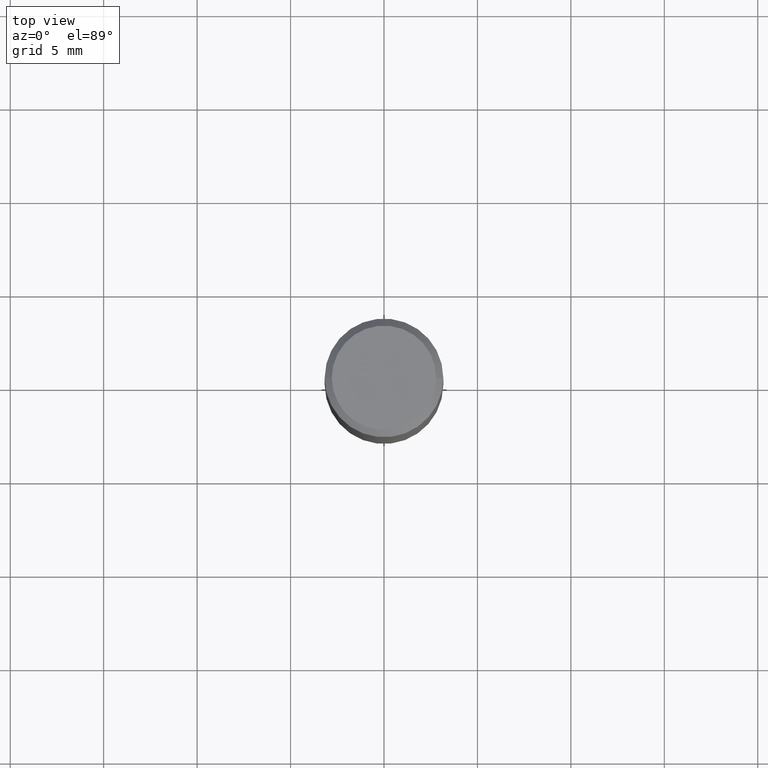
[diagram: clean part render]
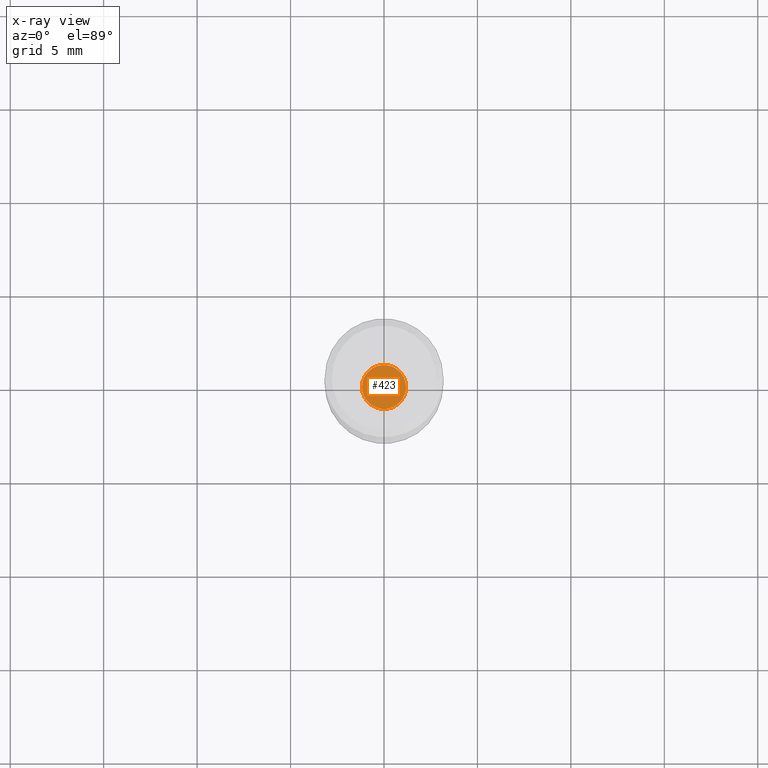
[diagram: x-ray — body ghosted, one internal face saturated and labeled with its STEP entity id]
A machine part, top view, then the same camera in x-ray: the body is ghosted and one INTERNAL B-rep face — a face not visible from any outside direction — is saturated and labeled: STEP entity #423.
In plain terms, the highlighted planar face has unit normal (-0, 0, 1).
Its self-contained STEP definition (entity closure, byte-faithful):
#8 = EDGE_CURVE ( 'NONE', #34, #416, #454, .T. ) ;
#25 = AXIS2_PLACEMENT_3D ( 'NONE', #94, #60, #309 ) ;
#26 = CARTESIAN_POINT ( 'NONE',  ( -0.04639999999999999680, -3.595575449631741560E-15, -1.125000000000000222 ) ) ;
#34 = VERTEX_POINT ( 'NONE', #26 ) ;
#45 = AXIS2_PLACEMENT_3D ( 'NONE', #134, #392, #77 ) ;
#60 = DIRECTION ( 'NONE',  ( -2.438088387897960049E-29, 3.491481338843145188E-15, 1.000000000000000000 ) ) ;
#77 = DIRECTION ( 'NONE',  ( 1.000000000000000000, -6.982962677686266711E-15, 0.000000000000000000 ) ) ;
#82 = AXIS2_PLACEMENT_3D ( 'NONE', #297, #358, #93 ) ;
#93 = DIRECTION ( 'NONE',  ( 1.000000000000000000, -6.982962677686266711E-15, 0.000000000000000000 ) ) ;
#94 = CARTESIAN_POINT ( 'NONE',  ( 2.751152406958279232E-29, -3.927916506198539224E-15, -1.125000000000000222 ) ) ;
#134 = CARTESIAN_POINT ( 'NONE',  ( 2.751152406958279232E-29, -3.927916506198539224E-15, -1.125000000000000222 ) ) ;
#150 = EDGE_CURVE ( 'NONE', #416, #34, #316, .T. ) ;
#161 = ORIENTED_EDGE ( 'NONE', *, *, #8, .F. ) ;
#171 = FACE_OUTER_BOUND ( 'NONE', #322, .T. ) ;
#183 = ORIENTED_EDGE ( 'NONE', *, *, #150, .F. ) ;
#208 = CARTESIAN_POINT ( 'NONE',  ( 0.04639999999999999680, -4.251925974443182119E-15, -1.125000000000000222 ) ) ;
#297 = CARTESIAN_POINT ( 'NONE',  ( 2.751152406958279232E-29, -3.927916506198539224E-15, -1.125000000000000222 ) ) ;
#309 = DIRECTION ( 'NONE',  ( 1.000000000000000000, -6.982962677686265922E-15, 4.876176775795935793E-29 ) ) ;
#312 = PLANE ( 'NONE',  #25 ) ;
#316 = CIRCLE ( 'NONE', #45, 0.04639999999999999680 ) ;
#322 = EDGE_LOOP ( 'NONE', ( #183, #161 ) ) ;
#358 = DIRECTION ( 'NONE',  ( -2.445468806185136597E-29, 3.491481338843145583E-15, 1.000000000000000000 ) ) ;
#392 = DIRECTION ( 'NONE',  ( -2.445468806185136597E-29, 3.491481338843145583E-15, 1.000000000000000000 ) ) ;
#416 = VERTEX_POINT ( 'NONE', #208 ) ;
#423 = ADVANCED_FACE ( 'NONE', ( #171 ), #312, .F. ) ;
#454 = CIRCLE ( 'NONE', #82, 0.04639999999999999680 ) ;